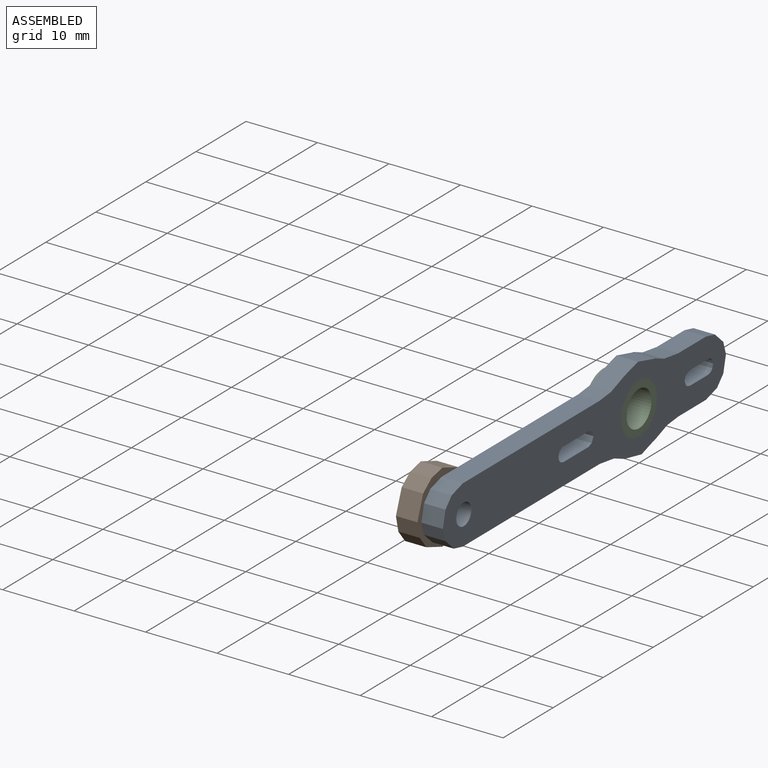
[diagram: assembled view]
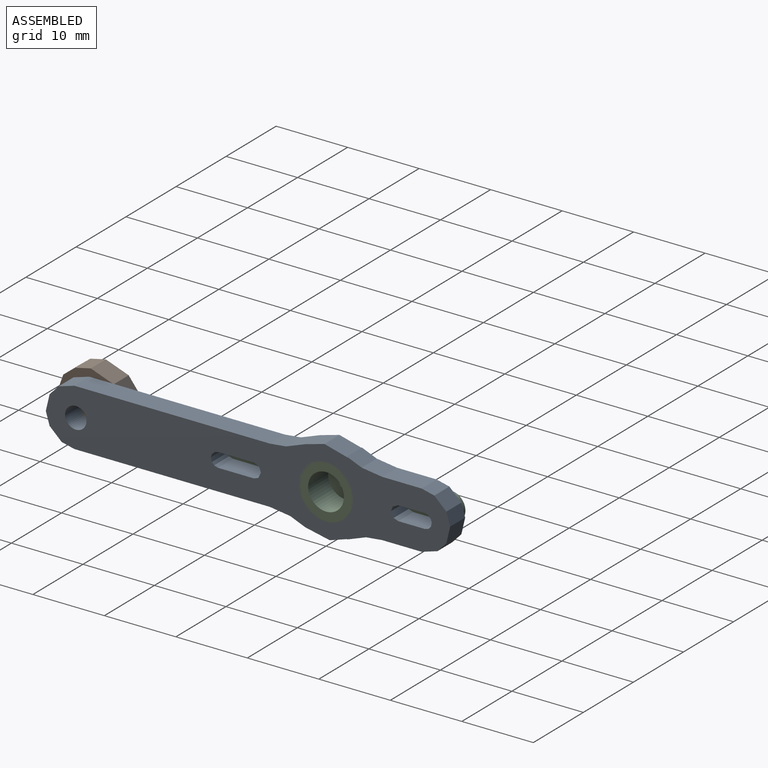
[diagram: assembled view, second angle]
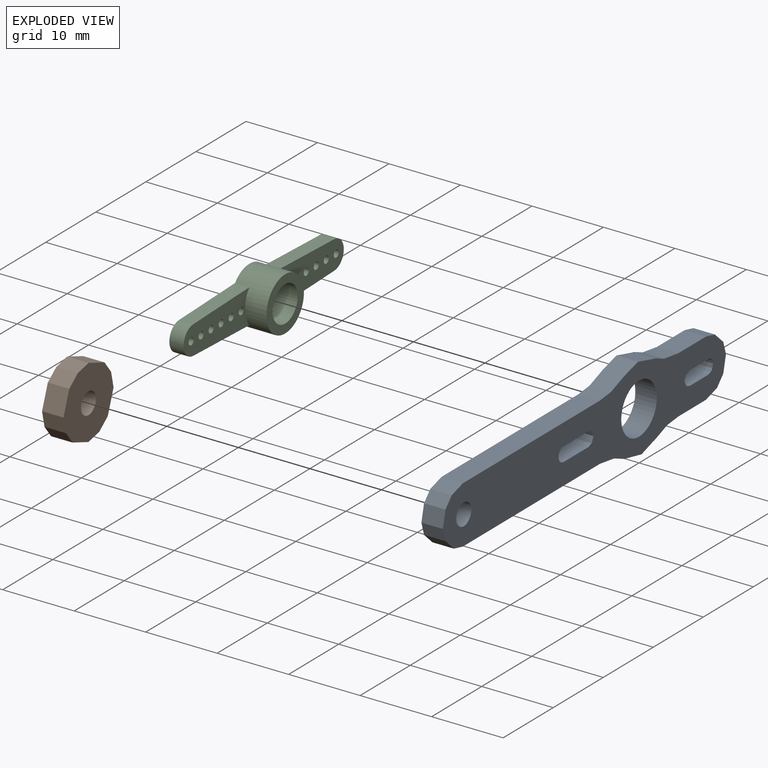
[diagram: exploded view]
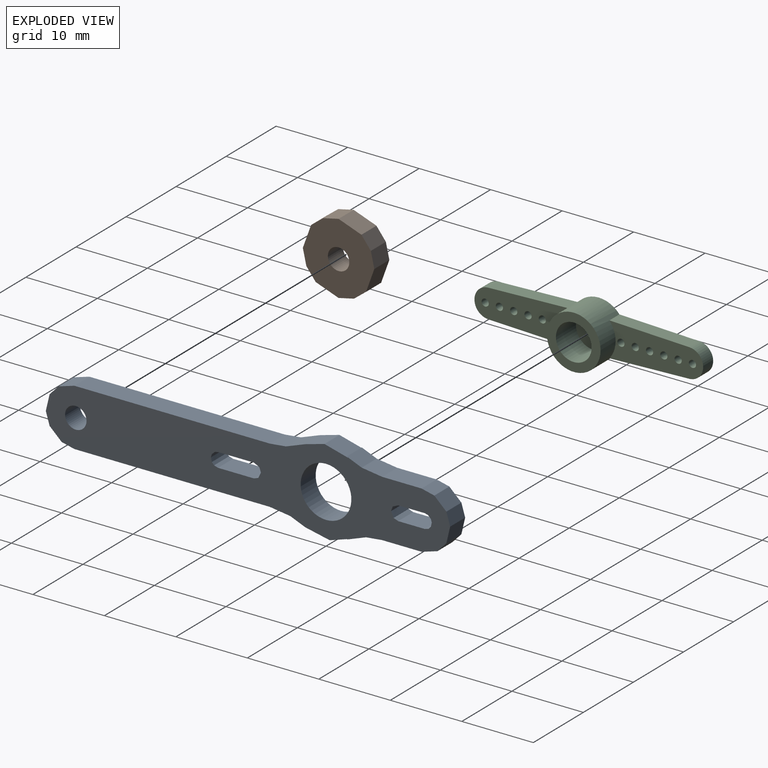
[diagram: exploded view, second angle]
ASSEMBLY  parts=3 mates=2
PART A: 58 faces, bbox 12x56.6x3 mm
  f0: plane 3x0.44mm, normal (0.29,0.96,0), area 1.4mm2, adj f1,f51,f55,f56
  f1: plane 3x0.42mm, normal (0.73,0.68,0), area 1.7mm2, adj f0,f2,f55,f56
  f2: plane 3x0.45mm, normal (0.97,0.23,0), area 1.4mm2, adj f1,f3,f55,f56
  f3: plane 3.7x3mm, normal (1,0,0), area 11.1mm2, adj f2,f4,f55,f56
  f4: plane 3x0.77mm, normal (0.91,-0.42,0), area 2.5mm2, adj f3,f5,f55,f56
  f5: plane 3x0.64mm, normal (0.34,-0.94,0), area 2mm2, adj f4,f6,f55,f56
  f6: plane 3x0.77mm, normal (-0.42,-0.91,0), area 2.5mm2, adj f5,f7,f55,f56
  f7: plane 3x0.64mm, normal (-0.94,-0.34,0), area 2mm2, adj f6,f8,f55,f56
  f8: plane 3.7x3mm, normal (-1,0,0), area 11.1mm2, adj f7,f9,f55,f56
  f9: plane 3x0.55mm, normal (-0.96,0.29,0), area 1.7mm2, adj f8,f10,f55,f56
  f10: plane 3x0.33mm, normal (-0.68,0.73,0), area 1.4mm2, adj f9,f51,f55,f56
  f11: plane 3x1.75mm, normal (-0.29,-0.96,0), area 5.5mm2, adj f12,f52,f55,f56
  f12: plane 3x2.25mm, normal (0.23,-0.97,0), area 6.9mm2, adj f11,f13,f55,f56
  f13: plane 3x1.33mm, normal (0.68,-0.73,0), area 5.5mm2, adj f12,f14,f55,f56
  f14: plane 3x2.21mm, normal (0.96,-0.29,0), area 6.9mm2, adj f13,f15,f55,f56
  f15: plane 5.53x3mm, normal (1,0,0), area 16.6mm2, adj f14,f16,f55,f56
  f16: plane 3x2.25mm, normal (0.99,-0.11,0), area 6.8mm2, adj f15,f17,f55,f56
  f17: plane 3x2.69mm, normal (0.94,-0.35,0), area 8.6mm2, adj f16,f18,f55,f56
  f18: plane 3x0.2mm, normal (-0.87,0.5,0), area 0.7mm2, adj f17,f19,f55,f56
  f19: plane 3x2.58mm, normal (0.95,-0.31,0), area 8.2mm2, adj f18,f20,f55,f56
  f20: plane 3.42x3mm, normal (0.98,0.21,0), area 10.5mm2, adj f19,f21,f55,f56
  f21: plane 3x2.09mm, normal (0.93,0.38,0), area 6.8mm2, adj f20,f22,f55,f56
  f22: plane 3x2.85mm, normal (0.99,0.14,0), area 8.6mm2, adj f21,f23,f55,f56
  f23: plane 27.35x3mm, normal (1,0,0), area 82.1mm2, adj f22,f24,f55,f56
  f24: plane 3x1.78mm, normal (0.97,0.23,0), area 5.5mm2, adj f23,f25,f55,f56
  f25: plane 3x1.68mm, normal (0.73,0.68,0), area 6.9mm2, adj f24,f26,f55,f56
  f26: plane 3x1.75mm, normal (0.29,0.96,0), area 5.5mm2, adj f25,f27,f55,f56
  f27: plane 3x2.25mm, normal (-0.23,0.97,0), area 6.9mm2, adj f26,f28,f55,f56
  f28: plane 3x1.33mm, normal (-0.68,0.73,0), area 5.5mm2, adj f27,f29,f55,f56
  f29: plane 3x2.21mm, normal (-0.96,0.29,0), area 6.9mm2, adj f28,f30,f55,f56
  f30: plane 27.35x3mm, normal (-1,0,0), area 82.1mm2, adj f29,f31,f55,f56
  f31: plane 3x2.25mm, normal (-0.99,0.11,0), area 6.8mm2, adj f30,f32,f55,f56
  f32: plane 3x2.69mm, normal (-0.94,0.35,0), area 8.6mm2, adj f31,f33,f55,f56
  f33: plane 3x2.69mm, normal (-0.96,0.27,0), area 8.4mm2, adj f32,f34,f55,f56
  f34: plane 3.34x3mm, normal (-0.97,-0.25,0), area 10.4mm2, adj f33,f35,f55,f56
  f35: plane 3x0.22mm, normal (0.87,0.5,0), area 0.8mm2, adj f34,f36,f55,f56
  f36: plane 3x2.09mm, normal (-0.93,-0.38,0), area 6.8mm2, adj f35,f37,f55,f56
  f37: plane 3x2.85mm, normal (-0.99,-0.14,0), area 8.6mm2, adj f36,f38,f55,f56
  f38: plane 5.53x3mm, normal (-1,0,0), area 16.6mm2, adj f37,f39,f55,f56
  f39: plane 3x1.78mm, normal (-0.97,-0.23,0), area 5.5mm2, adj f38,f52,f55,f56
  f40: plane 3x0.77mm, normal (-0.42,0.91,0), area 2.5mm2, adj f41,f53,f55,f56
  f41: plane 3x0.64mm, normal (0.34,0.94,0), area 2mm2, adj f40,f42,f55,f56
  f42: plane 3x0.77mm, normal (0.91,0.42,0), area 2.5mm2, adj f41,f43,f55,f56
  f43: plane 5x3mm, normal (1,0,0), area 15mm2, adj f42,f44,f55,f56
  f44: plane 3x0.45mm, normal (0.97,-0.23,0), area 1.4mm2, adj f43,f45,f55,f56
  f45: plane 3x0.42mm, normal (0.73,-0.68,0), area 1.7mm2, adj f44,f46,f55,f56
  f46: plane 3x0.44mm, normal (0.29,-0.96,0), area 1.4mm2, adj f45,f47,f55,f56
  f47: plane 3x0.56mm, normal (-0.23,-0.97,0), area 1.7mm2, adj f46,f48,f55,f56
  f48: plane 3x0.33mm, normal (-0.68,-0.73,0), area 1.4mm2, adj f47,f49,f55,f56
  f49: plane 3x0.55mm, normal (-0.96,-0.29,0), area 1.7mm2, adj f48,f50,f55,f56
  f50: plane 5x3mm, normal (-1,0,0), area 15mm2, adj f49,f53,f55,f56
  f51: plane 3x0.56mm, normal (-0.23,0.97,0), area 1.7mm2, adj f0,f10,f55,f56
  f52: plane 3x1.68mm, normal (-0.73,-0.68,0), area 6.9mm2, adj f11,f39,f55,f56
  f53: plane 3x0.64mm, normal (-0.94,0.34,0), area 2mm2, adj f40,f50,f55,f56
  f54: cylinder r=3.55mm len=7.1mm, axis (0,0,-1), area 66.9mm2, adj f55,f56
  f55: plane 56.56x11.97mm, normal (0,0,1), area 394.4mm2, adj f0,f1,f2,f3,f4,f5,f6,f7
  f56: plane 56.56x11.97mm, normal (0,0,-1), area 394.4mm2, adj f0,f1,f2,f3,f4,f5,f6,f7
  f57: cylinder r=1.5mm len=3mm, axis (0,0,1), area 28.3mm2, adj f55,f56
PART B: 15 faces, bbox 10x10x3 mm
  f0: plane 3.2x3mm, normal (-0.94,-0.34,0), area 10.2mm2, adj f1,f11,f13,f14
  f1: plane 3x1.69mm, normal (-0.62,-0.79,0), area 6.4mm2, adj f0,f2,f13,f14
  f2: plane 3x2.16mm, normal (-0.22,-0.98,0), area 6.6mm2, adj f1,f3,f13,f14
  f3: plane 3.2x3mm, normal (0.34,-0.94,0), area 10.2mm2, adj f2,f4,f13,f14
  f4: plane 3x1.69mm, normal (0.79,-0.62,0), area 6.4mm2, adj f3,f5,f13,f14
  f5: plane 3x2.16mm, normal (0.98,-0.22,0), area 6.6mm2, adj f4,f6,f13,f14
  f6: plane 3.2x3mm, normal (0.94,0.34,0), area 10.2mm2, adj f5,f7,f13,f14
  f7: plane 3x1.69mm, normal (0.62,0.79,0), area 6.4mm2, adj f6,f8,f13,f14
  f8: plane 3x2.16mm, normal (0.22,0.98,0), area 6.6mm2, adj f7,f9,f13,f14
  f9: plane 3.2x3mm, normal (-0.34,0.94,0), area 10.2mm2, adj f8,f10,f13,f14
  f10: plane 3x1.69mm, normal (-0.79,0.62,0), area 6.4mm2, adj f9,f11,f13,f14
  f11: plane 3x2.16mm, normal (-0.98,0.22,0), area 6.6mm2, adj f0,f10,f13,f14
  f12: cylinder r=1.5mm len=3mm, axis (0,0,-1), area 28.3mm2, adj f13,f14
  f13: plane 10x10mm, normal (0,0,1), area 67.4mm2, adj f0,f1,f2,f3,f4,f5,f6,f7
  f14: plane 10x10mm, normal (0,0,-1), area 67.4mm2, adj f0,f1,f2,f3,f4,f5,f6,f7
PART C: 28 faces, bbox 32x7.5x5 mm
  f0: cylinder r=2.5mm len=5mm, axis (0,0,1), area 62.8mm2, adj f11,f24
  f1: plane 13.11x4.79mm, normal (0,0,1), area 47.6mm2, adj f7,f8,f9,f10,f17,f18,f19,f20
  f2: plane 32x7.5mm, normal (0,0,-1), area 119.7mm2, adj f3,f4,f5,f7,f8,f9,f10,f12
  f3: plane 11.19x2mm, normal (0.04,-1,0), area 22.4mm2, adj f2,f4,f6,f7
  f4: cylinder r=2mm len=4mm, axis (0,0,-1), area 12.3mm2, adj f2,f3,f5,f6
  f5: plane 11.19x2mm, normal (0.04,1,0), area 22.4mm2, adj f2,f4,f6,f7
  f6: plane 13.11x4.79mm, normal (0,0,1), area 47.6mm2, adj f3,f4,f5,f7,f12,f13,f14,f15
  f7: cylinder r=3.75mm len=7.5mm, axis (0,0,1), area 97mm2, adj f1,f2,f3,f5,f6,f9,f10,f11
  f8: cylinder r=2mm len=4mm, axis (0,0,-1), area 12.3mm2, adj f1,f2,f9,f10
  f9: plane 11.19x2mm, normal (-0.04,-1,0), area 22.4mm2, adj f1,f2,f7,f8
  f10: plane 11.19x2mm, normal (-0.04,1,0), area 22.4mm2, adj f1,f2,f7,f8
  f11: plane 7.5x7.5mm, normal (0,0,1), area 24.5mm2, adj f0,f7
  f12: cylinder r=0.5mm len=2mm, axis (0,0,-1), area 6.3mm2, adj f2,f6
  f13: cylinder r=0.5mm len=2mm, axis (0,0,-1), area 6.3mm2, adj f2,f6
  f14: cylinder r=0.5mm len=2mm, axis (0,0,-1), area 6.3mm2, adj f2,f6
  f15: cylinder r=0.5mm len=2mm, axis (0,0,-1), area 6.3mm2, adj f2,f6
  f16: cylinder r=0.5mm len=2mm, axis (0,0,-1), area 6.3mm2, adj f2,f6
  f17: cylinder r=0.5mm len=2mm, axis (0,0,-1), area 6.3mm2, adj f1,f2
  f18: cylinder r=0.5mm len=2mm, axis (0,0,-1), area 6.3mm2, adj f1,f2
  f19: cylinder r=0.5mm len=2mm, axis (0,0,-1), area 6.3mm2, adj f1,f2
  f20: cylinder r=0.5mm len=2mm, axis (0,0,-1), area 6.3mm2, adj f1,f2
  f21: cylinder r=0.5mm len=2mm, axis (0,0,-1), area 6.3mm2, adj f1,f2
  f22: cylinder r=0.5mm len=2mm, axis (0,0,-1), area 6.3mm2, adj f1,f2
  f23: cylinder r=0.5mm len=2mm, axis (0,0,-1), area 6.3mm2, adj f2,f6
  f24: plane 5x5mm, normal (0,0,1), area 14.7mm2, adj f0,f27
  f25: cylinder r=2.5mm len=5mm, axis (0,0,-1), area 7.9mm2, adj f2,f26
  f26: plane 5x5mm, normal (0,0,-1), area 14.7mm2, adj f25,f27
  f27: cylinder r=1.25mm len=2.5mm, axis (0,0,-1), area 3.9mm2, adj f24,f26
PLACE A rot(axis=(0.71,0,-0.71),180deg) t=(0,-75.9,-133)mm
PLACE B rot(axis=(-0.71,0,0.71),180deg) t=(-3,-68.33,-125.05)mm
PLACE C rot(axis=(-0.58,0.58,-0.58),120deg) t=(-5,0,0)mm
MATE fastened C.f0 <-> A.f54  axis (1,0,0) through (-3,0,0)mm
MATE fastened B.f12 <-> A.f57  axis (1,0,0) through (-3,-35,0)mm
